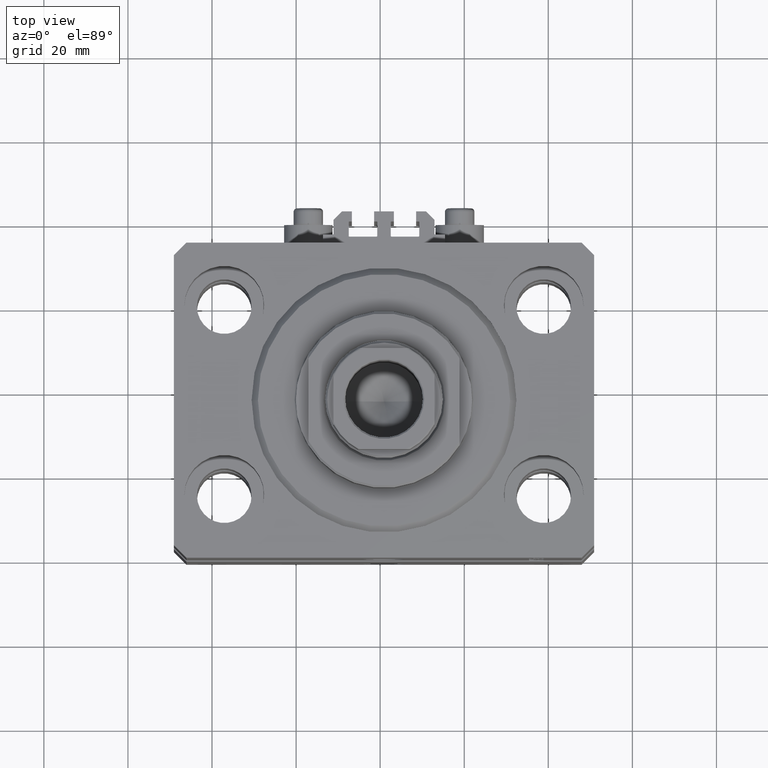
[diagram: clean part render]
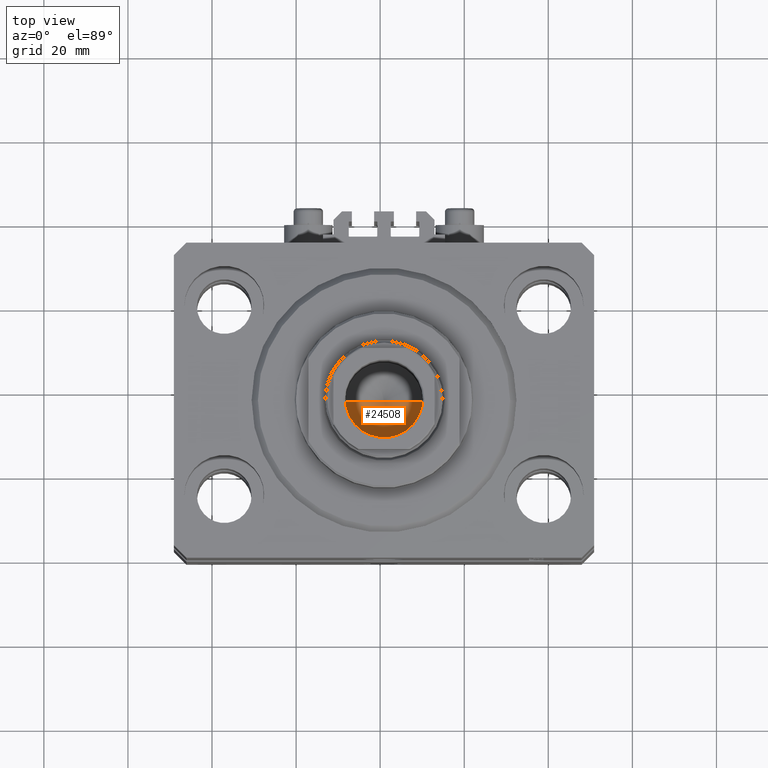
[diagram: same view with one face highlighted and labeled with its STEP entity id]
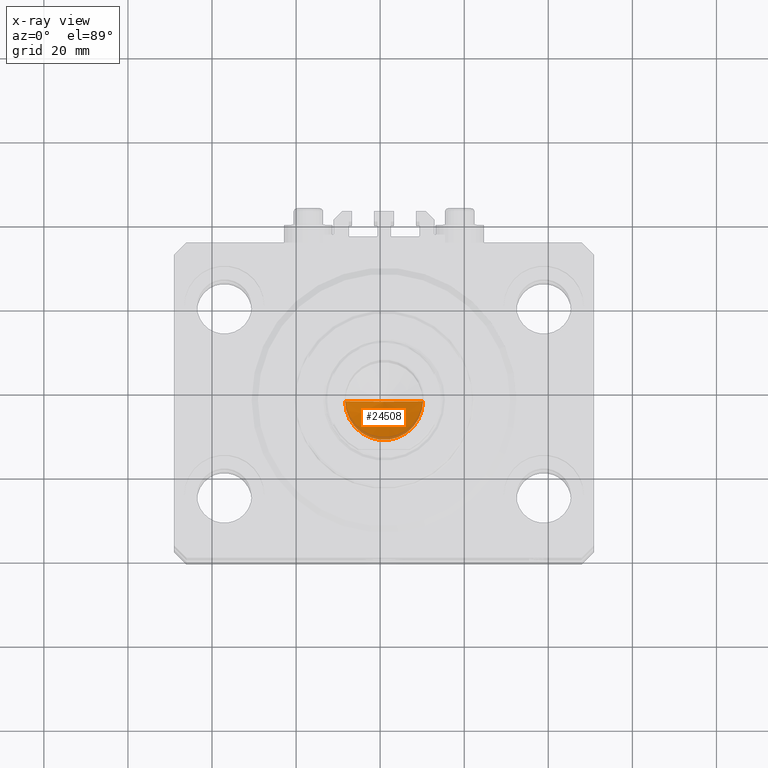
[diagram: x-ray of the same camera — body ghosted, the highlighted face saturated]
A machine part, top view. The second image highlights one B-rep face of the part: STEP entity #24508.
The next image is the same camera in x-ray: the body ghosted, the highlighted face saturated — about 8% of this face is hidden behind the body in this view.
In plain terms, the highlighted conical surface has half-angle 59 deg.
Its self-contained STEP definition (entity closure, byte-faithful):
#697 = CARTESIAN_POINT ( 'NONE',  ( -1.046994375366439223E-14, 0.000000000000000000, 62.54203927399505858 ) ) ;
#841 = VECTOR ( 'NONE', #43946, 1000.000000000000000 ) ;
#961 = VERTEX_POINT ( 'NONE', #30333 ) ;
#2538 = DIRECTION ( 'NONE',  ( 0.8571673007021117785, 0.000000000000000000, 0.5150380749100550437 ) ) ;
#3917 = LINE ( 'NONE', #14316, #841 ) ;
#7061 = DIRECTION ( 'NONE',  ( 1.000000000000000000, 0.000000000000000000, 0.000000000000000000 ) ) ;
#8521 = VECTOR ( 'NONE', #2538, 1000.000000000000000 ) ;
#9858 = DIRECTION ( 'NONE',  ( 1.000000000000000000, 0.000000000000000000, 0.000000000000000000 ) ) ;
#12533 = ORIENTED_EDGE ( 'NONE', *, *, #18244, .T. ) ;
#13482 = DIRECTION ( 'NONE',  ( -0.000000000000000000, -0.000000000000000000, 1.000000000000000000 ) ) ;
#13950 = CARTESIAN_POINT ( 'NONE',  ( 0.000000000000000000, 0.000000000000000000, 68.09999999999999432 ) ) ;
#14316 = CARTESIAN_POINT ( 'NONE',  ( -9.249999999999994671, 1.132798289211300909E-15, 68.09999999999999432 ) ) ;
#16768 = EDGE_CURVE ( 'NONE', #23517, #42324, #39164, .T. ) ;
#18244 = EDGE_CURVE ( 'NONE', #23517, #961, #3917, .T. ) ;
#23517 = VERTEX_POINT ( 'NONE', #697 ) ;
#24039 = CONICAL_SURFACE ( 'NONE', #45574, 9.249999999999994671, 1.029744258676653423 ) ;
#24508 = ADVANCED_FACE ( 'NONE', ( #39484 ), #24039, .F. ) ;
#24922 = CARTESIAN_POINT ( 'NONE',  ( 0.000000000000000000, 0.000000000000000000, 68.09999999999999432 ) ) ;
#24957 = CARTESIAN_POINT ( 'NONE',  ( 9.249999999999994671, 0.000000000000000000, 68.09999999999999432 ) ) ;
#26462 = EDGE_LOOP ( 'NONE', ( #38420, #12533, #30619 ) ) ;
#28728 = EDGE_CURVE ( 'NONE', #961, #42324, #31100, .T. ) ;
#30333 = CARTESIAN_POINT ( 'NONE',  ( -9.249999999999994671, 1.132798289211300909E-15, 68.09999999999999432 ) ) ;
#30619 = ORIENTED_EDGE ( 'NONE', *, *, #28728, .T. ) ;
#31100 = CIRCLE ( 'NONE', #41899, 9.249999999999994671 ) ;
#38420 = ORIENTED_EDGE ( 'NONE', *, *, #16768, .F. ) ;
#39164 = LINE ( 'NONE', #24957, #8521 ) ;
#39484 = FACE_OUTER_BOUND ( 'NONE', #26462, .T. ) ;
#40327 = DIRECTION ( 'NONE',  ( -0.000000000000000000, -0.000000000000000000, 1.000000000000000000 ) ) ;
#41899 = AXIS2_PLACEMENT_3D ( 'NONE', #24922, #40327, #7061 ) ;
#42324 = VERTEX_POINT ( 'NONE', #45333 ) ;
#43946 = DIRECTION ( 'NONE',  ( -0.8571673007021117785, 1.049727191138617956E-16, 0.5150380749100550437 ) ) ;
#45333 = CARTESIAN_POINT ( 'NONE',  ( 9.249999999999994671, 0.000000000000000000, 68.09999999999999432 ) ) ;
#45574 = AXIS2_PLACEMENT_3D ( 'NONE', #13950, #13482, #9858 ) ;